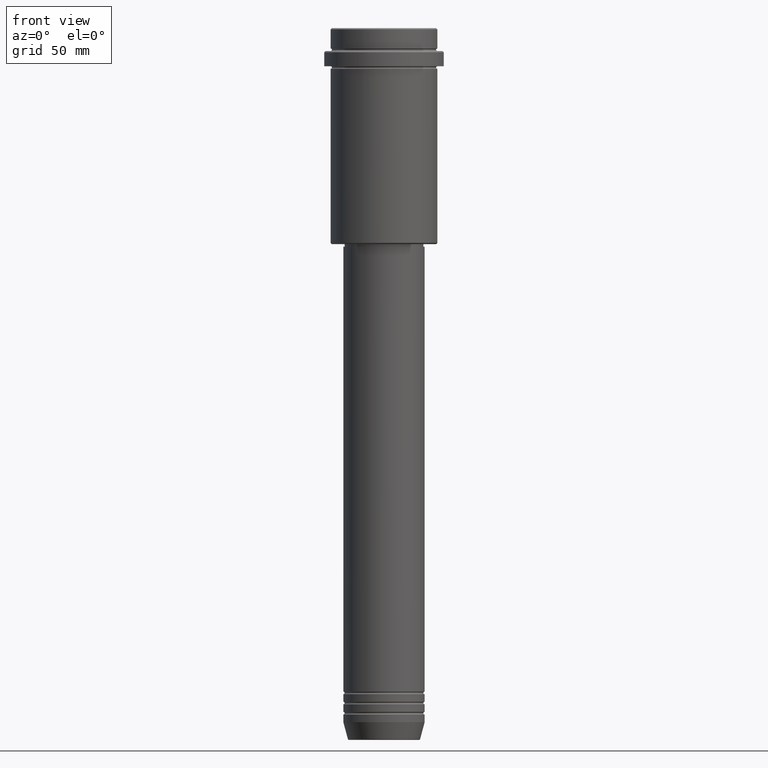
[diagram: clean part render]
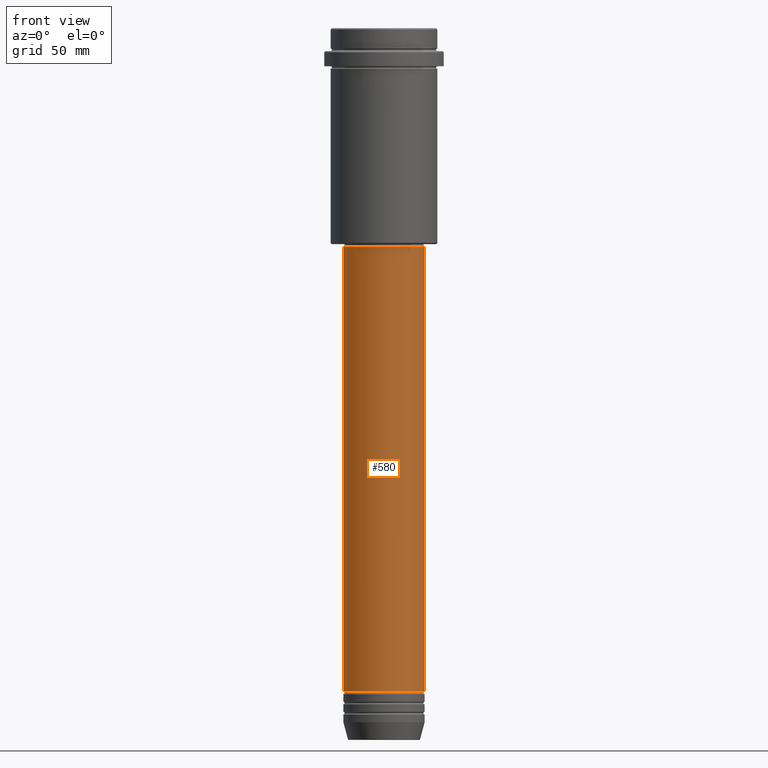
[diagram: same view with one face highlighted and labeled with its STEP entity id]
A machine part, front view. The second image highlights one B-rep face of the part: STEP entity #580.
In plain terms, the highlighted cylindrical surface (partial cylindrical patch) has radius 16 mm, axis along (-0, -0, 1).
Its self-contained STEP definition (entity closure, byte-faithful):
#54 = AXIS2_PLACEMENT_3D ( 'NONE', #1108, #1010, #219 ) ;
#122 = LINE ( 'NONE', #782, #1295 ) ;
#213 = CARTESIAN_POINT ( 'NONE',  ( 16.00000000000000000, 0.000000000000000000, -260.9999999999998863 ) ) ;
#219 = DIRECTION ( 'NONE',  ( 1.000000000000000000, 0.000000000000000000, 0.000000000000000000 ) ) ;
#229 = ORIENTED_EDGE ( 'NONE', *, *, #513, .F. ) ;
#269 = EDGE_CURVE ( 'NONE', #687, #873, #122, .T. ) ;
#376 = DIRECTION ( 'NONE',  ( -0.000000000000000000, -0.000000000000000000, 1.000000000000000000 ) ) ;
#409 = ORIENTED_EDGE ( 'NONE', *, *, #1175, .T. ) ;
#454 = FACE_OUTER_BOUND ( 'NONE', #862, .T. ) ;
#461 = CARTESIAN_POINT ( 'NONE',  ( 16.00000000000000000, 0.000000000000000000, 0.000000000000000000 ) ) ;
#467 = ORIENTED_EDGE ( 'NONE', *, *, #269, .F. ) ;
#483 = CIRCLE ( 'NONE', #690, 16.00000000000000355 ) ;
#513 = EDGE_CURVE ( 'NONE', #873, #517, #483, .T. ) ;
#517 = VERTEX_POINT ( 'NONE', #852 ) ;
#535 = CARTESIAN_POINT ( 'NONE',  ( -16.00000000000000355, 1.959434878635765526E-15, -86.00000000000001421 ) ) ;
#554 = DIRECTION ( 'NONE',  ( -0.000000000000000000, -0.000000000000000000, 1.000000000000000000 ) ) ;
#561 = DIRECTION ( 'NONE',  ( -0.000000000000000000, -0.000000000000000000, 1.000000000000000000 ) ) ;
#580 = ADVANCED_FACE ( 'NONE', ( #454 ), #1016, .T. ) ;
#584 = CARTESIAN_POINT ( 'NONE',  ( -16.00000000000000000, 1.959434878635765131E-15, -260.9999999999998863 ) ) ;
#602 = VERTEX_POINT ( 'NONE', #213 ) ;
#633 = DIRECTION ( 'NONE',  ( 1.000000000000000000, 0.000000000000000000, 0.000000000000000000 ) ) ;
#658 = EDGE_CURVE ( 'NONE', #602, #517, #1345, .T. ) ;
#687 = VERTEX_POINT ( 'NONE', #584 ) ;
#690 = AXIS2_PLACEMENT_3D ( 'NONE', #1201, #1192, #633 ) ;
#782 = CARTESIAN_POINT ( 'NONE',  ( -16.00000000000000000, 1.959434878635765131E-15, 0.000000000000000000 ) ) ;
#791 = VECTOR ( 'NONE', #554, 1000.000000000000000 ) ;
#807 = DIRECTION ( 'NONE',  ( 1.000000000000000000, 0.000000000000000000, 0.000000000000000000 ) ) ;
#852 = CARTESIAN_POINT ( 'NONE',  ( 16.00000000000000355, 0.000000000000000000, -86.00000000000001421 ) ) ;
#862 = EDGE_LOOP ( 'NONE', ( #467, #409, #1059, #229 ) ) ;
#873 = VERTEX_POINT ( 'NONE', #535 ) ;
#906 = CIRCLE ( 'NONE', #1210, 16.00000000000000000 ) ;
#932 = CARTESIAN_POINT ( 'NONE',  ( 0.000000000000000000, 0.000000000000000000, -260.9999999999998863 ) ) ;
#1010 = DIRECTION ( 'NONE',  ( -0.000000000000000000, -0.000000000000000000, 1.000000000000000000 ) ) ;
#1016 = CYLINDRICAL_SURFACE ( 'NONE', #54, 16.00000000000000000 ) ;
#1059 = ORIENTED_EDGE ( 'NONE', *, *, #658, .T. ) ;
#1108 = CARTESIAN_POINT ( 'NONE',  ( 0.000000000000000000, 0.000000000000000000, 0.000000000000000000 ) ) ;
#1175 = EDGE_CURVE ( 'NONE', #687, #602, #906, .T. ) ;
#1192 = DIRECTION ( 'NONE',  ( -0.000000000000000000, -0.000000000000000000, 1.000000000000000000 ) ) ;
#1201 = CARTESIAN_POINT ( 'NONE',  ( 0.000000000000000000, 0.000000000000000000, -86.00000000000001421 ) ) ;
#1210 = AXIS2_PLACEMENT_3D ( 'NONE', #932, #376, #807 ) ;
#1295 = VECTOR ( 'NONE', #561, 1000.000000000000000 ) ;
#1345 = LINE ( 'NONE', #461, #791 ) ;